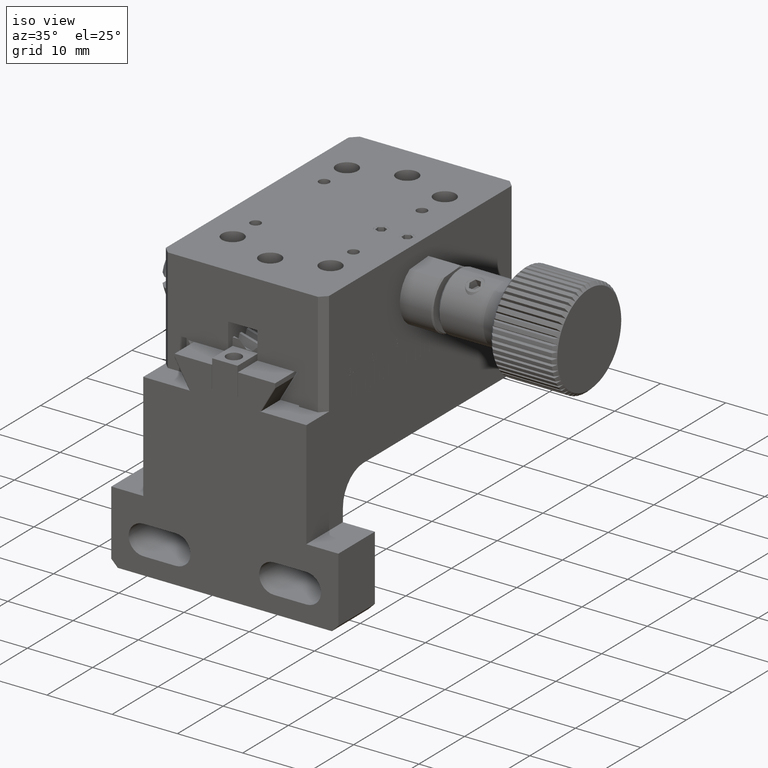
[diagram: clean part render]
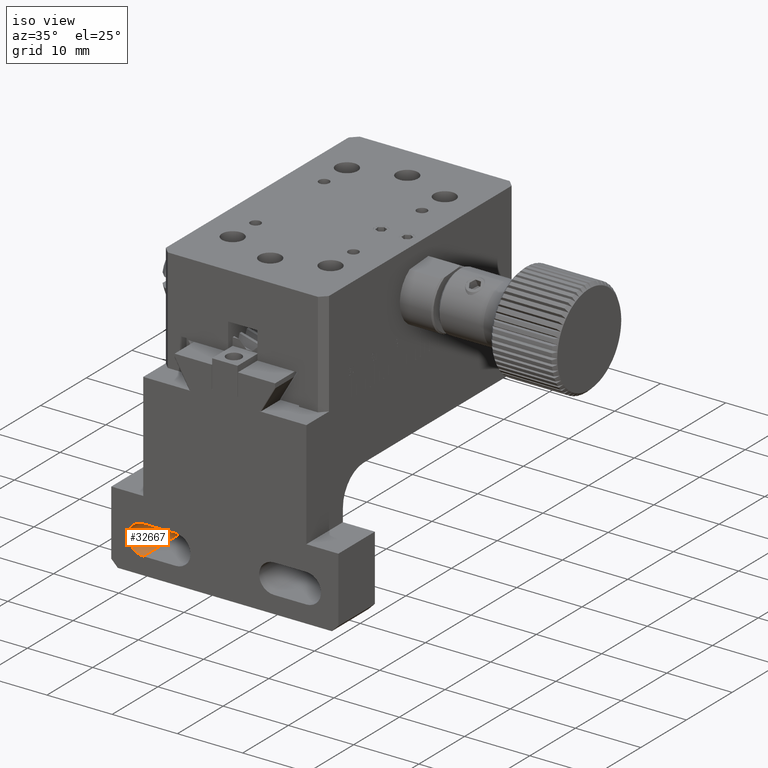
[diagram: same view with one face highlighted and labeled with its STEP entity id]
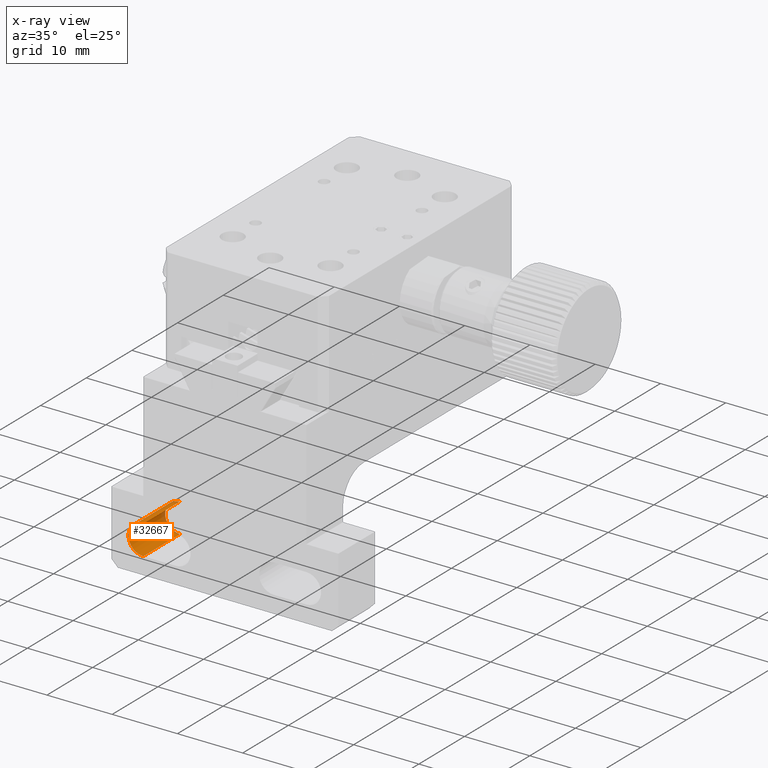
[diagram: x-ray of the same camera — body ghosted, the highlighted face saturated]
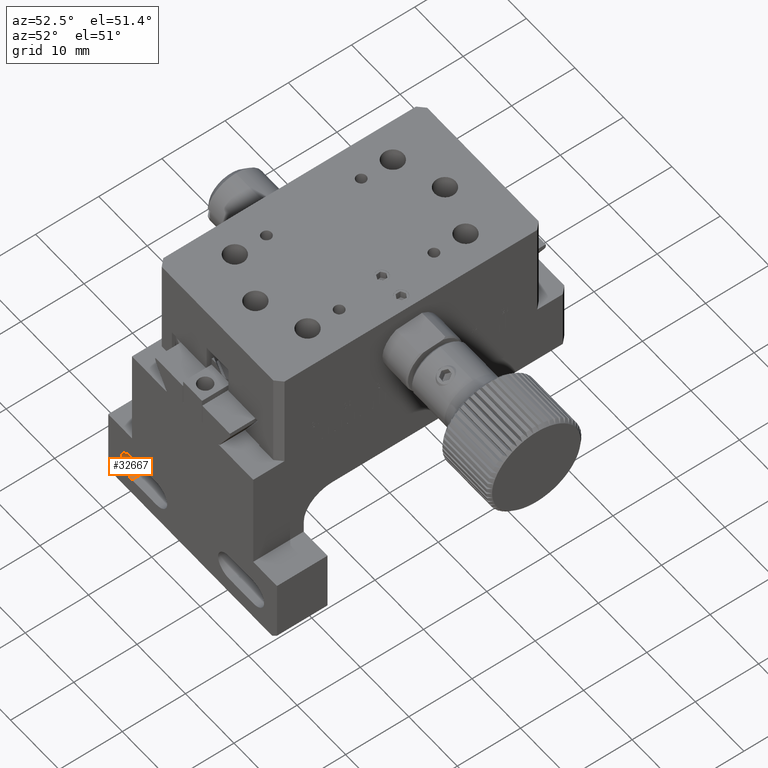
[diagram: same view with one face highlighted and labeled with its STEP entity id]
A machine part, iso view. The second image highlights one B-rep face of the part: STEP entity #32667.
The next image is the same camera in x-ray: the body ghosted, the highlighted face saturated — about 9% of this face is hidden behind the body in this view.
A second angle (auxiliary view) of the same face is appended — the face is thin or edge-on in the first view.
In plain terms, the highlighted cylindrical surface (edge-blend (fillet) strip) has radius 2.25 mm, axis along (0, 1, 0).
Its self-contained STEP definition (entity closure, byte-faithful):
#1870 = VERTEX_POINT ( 'NONE', #19670 ) ;
#2703 = CIRCLE ( 'NONE', #66648, 2.250000000000001776 ) ;
#3324 = CARTESIAN_POINT ( 'NONE',  ( 51.21116878375735126, 13.63550279078415706, 48.60689688578997192 ) ) ;
#8894 = CARTESIAN_POINT ( 'NONE',  ( 51.21116878375735126, 13.63550279078413219, 50.85689688578997192 ) ) ;
#14707 = VERTEX_POINT ( 'NONE', #79556 ) ;
#15071 = EDGE_CURVE ( 'NONE', #95208, #25983, #48310, .T. ) ;
#19670 = CARTESIAN_POINT ( 'NONE',  ( 51.21116878375735126, 13.63550279078410910, 53.10689688578997902 ) ) ;
#21591 = VECTOR ( 'NONE', #23978, 1000.000000000000000 ) ;
#23978 = DIRECTION ( 'NONE',  ( 0.000000000000000000, 1.000000000000000000, 1.047444401652940007E-14 ) ) ;
#25040 = DIRECTION ( 'NONE',  ( 0.000000000000000000, -1.000000000000000000, -1.047444401652940007E-14 ) ) ;
#25427 = EDGE_CURVE ( 'NONE', #14707, #25983, #2703, .T. ) ;
#25983 = VERTEX_POINT ( 'NONE', #60745 ) ;
#27784 = ORIENTED_EDGE ( 'NONE', *, *, #25427, .F. ) ;
#30136 = ORIENTED_EDGE ( 'NONE', *, *, #45488, .T. ) ;
#32667 = ADVANCED_FACE ( 'NONE', ( #52488 ), #108663, .F. ) ;
#33042 = CARTESIAN_POINT ( 'NONE',  ( 51.21116878375735126, 13.63550279078415528, 48.60689688578997192 ) ) ;
#33386 = AXIS2_PLACEMENT_3D ( 'NONE', #8894, #101893, #65631 ) ;
#45488 = EDGE_CURVE ( 'NONE', #14707, #1870, #70962, .T. ) ;
#46915 = DIRECTION ( 'NONE',  ( -0.000000000000000000, -1.000000000000000000, -1.047444401652940007E-14 ) ) ;
#47854 = ORIENTED_EDGE ( 'NONE', *, *, #98950, .F. ) ;
#48310 = LINE ( 'NONE', #33042, #21591 ) ;
#52488 = FACE_OUTER_BOUND ( 'NONE', #111999, .T. ) ;
#53684 = DIRECTION ( 'NONE',  ( 0.000000000000000000, -1.079383496163345760E-14, 1.000000000000000000 ) ) ;
#57428 = ORIENTED_EDGE ( 'NONE', *, *, #15071, .T. ) ;
#60745 = CARTESIAN_POINT ( 'NONE',  ( 51.21116878375735126, 21.63550279078415883, 48.60689688579005718 ) ) ;
#65631 = DIRECTION ( 'NONE',  ( 0.000000000000000000, -1.079383496163345760E-14, 1.000000000000000000 ) ) ;
#66648 = AXIS2_PLACEMENT_3D ( 'NONE', #82619, #46915, #118873 ) ;
#70962 = LINE ( 'NONE', #107791, #105794 ) ;
#79556 = CARTESIAN_POINT ( 'NONE',  ( 51.21116878375735126, 21.63550279078410910, 53.10689688579005718 ) ) ;
#82619 = CARTESIAN_POINT ( 'NONE',  ( 51.21116878375735126, 21.63550279078413396, 50.85689688579005718 ) ) ;
#84313 = AXIS2_PLACEMENT_3D ( 'NONE', #99020, #97827, #53684 ) ;
#93234 = CIRCLE ( 'NONE', #33386, 2.250000000000001776 ) ;
#95208 = VERTEX_POINT ( 'NONE', #3324 ) ;
#97827 = DIRECTION ( 'NONE',  ( 0.000000000000000000, 1.000000000000000000, 1.047444401652940007E-14 ) ) ;
#98950 = EDGE_CURVE ( 'NONE', #95208, #1870, #93234, .T. ) ;
#99020 = CARTESIAN_POINT ( 'NONE',  ( 51.21116878375735126, 13.63550279078413219, 50.85689688578997192 ) ) ;
#101893 = DIRECTION ( 'NONE',  ( 0.000000000000000000, 1.000000000000000000, 1.047444401652940007E-14 ) ) ;
#105794 = VECTOR ( 'NONE', #25040, 1000.000000000000000 ) ;
#107791 = CARTESIAN_POINT ( 'NONE',  ( 51.21116878375735126, 13.63550279078410732, 53.10689688578997902 ) ) ;
#108663 = CYLINDRICAL_SURFACE ( 'NONE', #84313, 2.250000000000001776 ) ;
#111999 = EDGE_LOOP ( 'NONE', ( #30136, #47854, #57428, #27784 ) ) ;
#118873 = DIRECTION ( 'NONE',  ( 0.000000000000000000, -1.079383496163345760E-14, 1.000000000000000000 ) ) ;